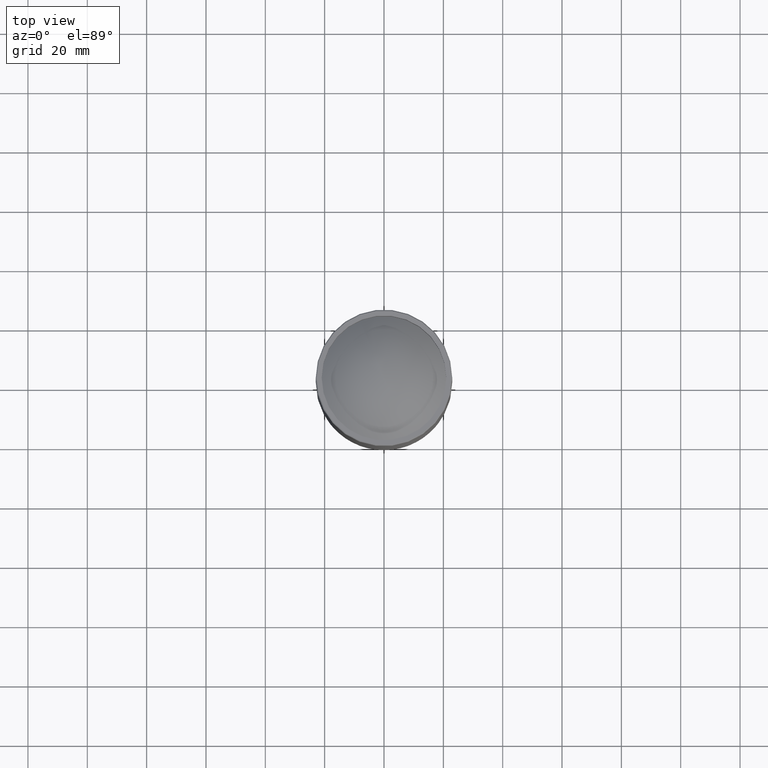
[diagram: clean part render]
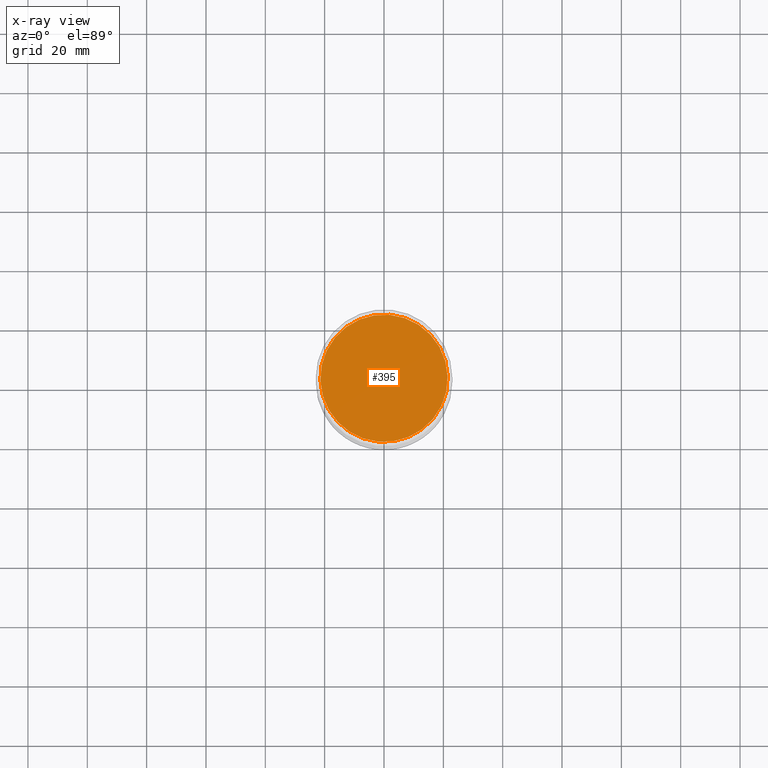
[diagram: x-ray — body ghosted, one internal face saturated and labeled with its STEP entity id]
A machine part, top view, then the same camera in x-ray: the body is ghosted and one INTERNAL B-rep face — a face not visible from any outside direction — is saturated and labeled: STEP entity #395.
In plain terms, the highlighted planar face has unit normal (-0, 0, 1).
Its self-contained STEP definition (entity closure, byte-faithful):
#38 = EDGE_CURVE ( 'NONE', #488, #488, #139, .T. ) ;
#78 = DIRECTION ( 'NONE',  ( 0.3830490080632378835, -0.9237280213470681067, 1.218036320871736945E-16 ) ) ;
#86 = CARTESIAN_POINT ( 'NONE',  ( -2.775557561562891351E-14, 1.387778780781445676E-14, -447.0000000000000568 ) ) ;
#139 = CIRCLE ( 'NONE', #840, 21.45211006975307555 ) ;
#190 = FACE_OUTER_BOUND ( 'NONE', #528, .T. ) ;
#345 = DIRECTION ( 'NONE',  ( -1.232595164407830946E-32, -1.318609258053555361E-16, -1.000000000000000000 ) ) ;
#363 = ORIENTED_EDGE ( 'NONE', *, *, #38, .T. ) ;
#395 = ADVANCED_FACE ( 'NONE', ( #190 ), #441, .F. ) ;
#402 = AXIS2_PLACEMENT_3D ( 'NONE', #721, #515, #78 ) ;
#441 = PLANE ( 'NONE',  #402 ) ;
#484 = CARTESIAN_POINT ( 'NONE',  ( 8.217209483082285715, -19.81591518845251088, -447.0000000000000568 ) ) ;
#488 = VERTEX_POINT ( 'NONE', #484 ) ;
#515 = DIRECTION ( 'NONE',  ( -1.848892746611746419E-32, 1.318609258053556101E-16, 1.000000000000000000 ) ) ;
#528 = EDGE_LOOP ( 'NONE', ( #363 ) ) ;
#721 = CARTESIAN_POINT ( 'NONE',  ( -7.311375404722625149, -63.84507486142586430, -447.0000000000000568 ) ) ;
#810 = DIRECTION ( 'NONE',  ( 0.3830490080632379390, -0.9237280213470682178, 0.000000000000000000 ) ) ;
#840 = AXIS2_PLACEMENT_3D ( 'NONE', #86, #345, #810 ) ;